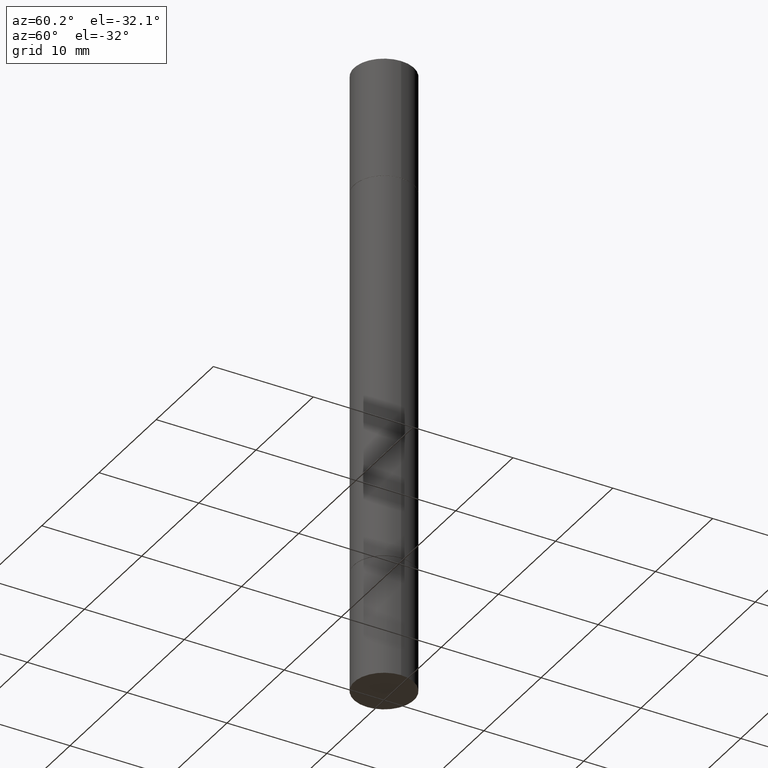
[diagram: clean part render]
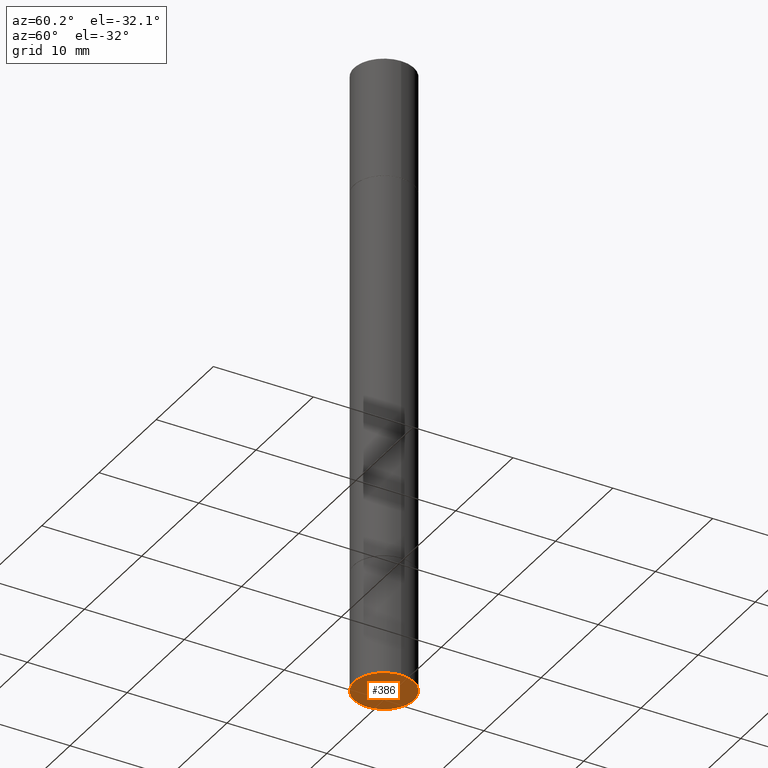
[diagram: same view with one face highlighted and labeled with its STEP entity id]
A machine part, auxiliary view. The second image highlights one B-rep face of the part: STEP entity #386.
In plain terms, the highlighted planar face has unit normal (0, -0, -1).
Its self-contained STEP definition (entity closure, byte-faithful):
#24 = DIRECTION ( 'NONE',  ( 1.000000000000000000, -6.982962677686273021E-15, 0.000000000000000000 ) ) ;
#66 = ORIENTED_EDGE ( 'NONE', *, *, #327, .F. ) ;
#80 = CARTESIAN_POINT ( 'NONE',  ( 0.1180999999999999966, -9.484609056967403598E-15, -2.480300000000000171 ) ) ;
#83 = DIRECTION ( 'NONE',  ( -1.000000000000000000, 6.982962677686265922E-15, -4.876176775795935793E-29 ) ) ;
#94 = EDGE_LOOP ( 'NONE', ( #230, #66 ) ) ;
#221 = CARTESIAN_POINT ( 'NONE',  ( 6.065496279980994755E-29, -8.659921164732655335E-15, -2.480300000000000171 ) ) ;
#230 = ORIENTED_EDGE ( 'NONE', *, *, #295, .F. ) ;
#272 = AXIS2_PLACEMENT_3D ( 'NONE', #221, #540, #24 ) ;
#286 = CARTESIAN_POINT ( 'NONE',  ( -0.1180999999999999966, -6.996082301565225720E-15, -2.480300000000000171 ) ) ;
#295 = EDGE_CURVE ( 'NONE', #326, #388, #471, .T. ) ;
#326 = VERTEX_POINT ( 'NONE', #80 ) ;
#327 = EDGE_CURVE ( 'NONE', #388, #326, #457, .T. ) ;
#363 = AXIS2_PLACEMENT_3D ( 'NONE', #384, #590, #83 ) ;
#380 = DIRECTION ( 'NONE',  ( -2.445468806185136597E-29, 3.491481338843145583E-15, 1.000000000000000000 ) ) ;
#384 = CARTESIAN_POINT ( 'NONE',  ( 8.246878922348086105E-16, 0.1180999999999913369, -2.480300000000001059 ) ) ;
#386 = ADVANCED_FACE ( 'NONE', ( #587 ), #428, .T. ) ;
#388 = VERTEX_POINT ( 'NONE', #286 ) ;
#419 = AXIS2_PLACEMENT_3D ( 'NONE', #655, #380, #480 ) ;
#428 = PLANE ( 'NONE',  #363 ) ;
#457 = CIRCLE ( 'NONE', #419, 0.1180999999999999966 ) ;
#471 = CIRCLE ( 'NONE', #272, 0.1180999999999999966 ) ;
#480 = DIRECTION ( 'NONE',  ( 1.000000000000000000, -6.982962677686273021E-15, 0.000000000000000000 ) ) ;
#540 = DIRECTION ( 'NONE',  ( -2.445468806185136597E-29, 3.491481338843145583E-15, 1.000000000000000000 ) ) ;
#587 = FACE_OUTER_BOUND ( 'NONE', #94, .T. ) ;
#590 = DIRECTION ( 'NONE',  ( 2.438088387897960049E-29, -3.491481338843145188E-15, -1.000000000000000000 ) ) ;
#655 = CARTESIAN_POINT ( 'NONE',  ( 6.065496279980994755E-29, -8.659921164732655335E-15, -2.480300000000000171 ) ) ;